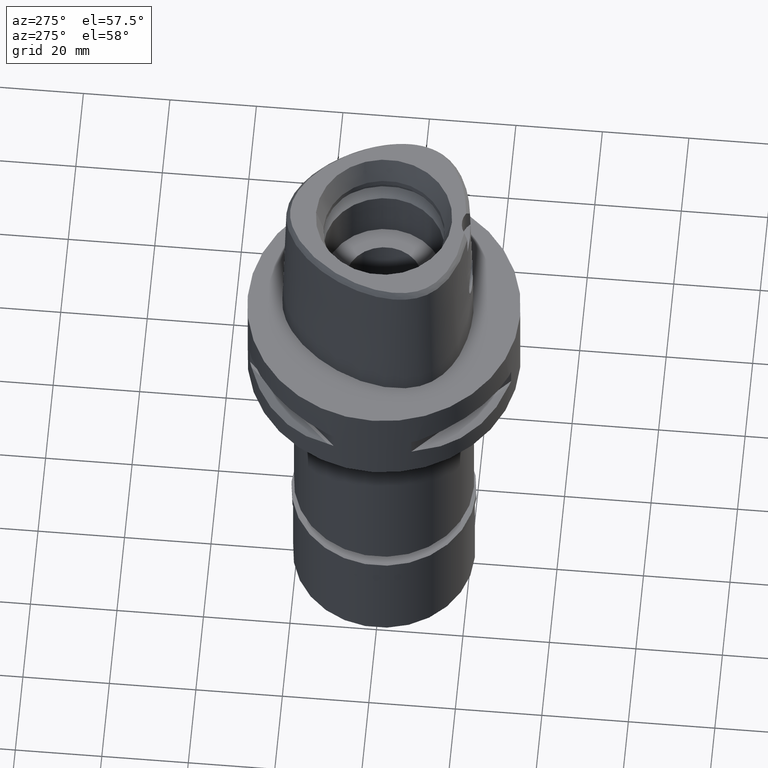
[diagram: clean part render]
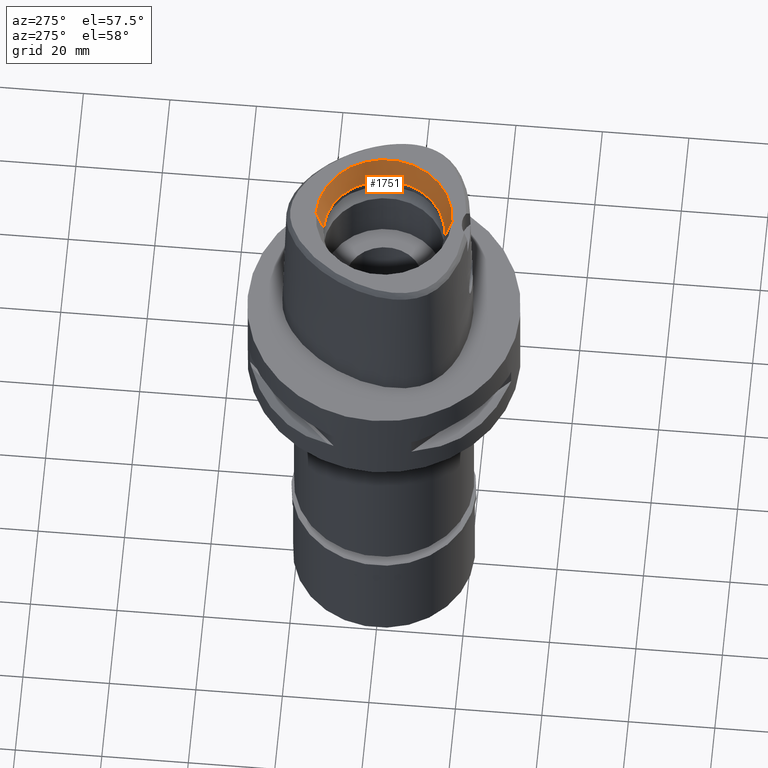
[diagram: same view with one face highlighted and labeled with its STEP entity id]
A machine part, auxiliary view. The second image highlights one B-rep face of the part: STEP entity #1751.
In plain terms, the highlighted conical surface has half-angle 15 deg.
Its self-contained STEP definition (entity closure, byte-faithful):
#6 = DIRECTION ( 'NONE',  ( 0.0000000000000000000, -1.000000000000000000, 0.0000000000000000000 ) ) ;
#212 = LINE ( 'NONE', #1741, #1684 ) ;
#381 = CARTESIAN_POINT ( 'NONE',  ( 0.0000000000000000000, -14.00000000000000000, 31.60000000000000142 ) ) ;
#456 = ORIENTED_EDGE ( 'NONE', *, *, #2686, .T. ) ;
#486 = AXIS2_PLACEMENT_3D ( 'NONE', #3846, #3016, #6 ) ;
#499 = DIRECTION ( 'NONE',  ( 0.0000000000000000000, -0.2588190451025869088, 0.9659258262890505486 ) ) ;
#1100 = VERTEX_POINT ( 'NONE', #1412 ) ;
#1366 = DIRECTION ( 'NONE',  ( 0.0000000000000000000, 0.2588190451025869088, 0.9659258262890505486 ) ) ;
#1412 = CARTESIAN_POINT ( 'NONE',  ( 0.0000000000000000000, -14.00000000000000000, 31.60000000000000142 ) ) ;
#1535 = CONICAL_SURFACE ( 'NONE', #3221, 14.85743741577999977, 0.2617993877991000029 ) ;
#1684 = VECTOR ( 'NONE', #1366, 1000.000000000000000 ) ;
#1741 = CARTESIAN_POINT ( 'NONE',  ( 0.0000000000000000000, 14.00000000000000000, 31.60000000000000142 ) ) ;
#1751 = ADVANCED_FACE ( 'NONE', ( #4516 ), #1535, .F. ) ;
#1859 = ORIENTED_EDGE ( 'NONE', *, *, #4257, .F. ) ;
#2225 = DIRECTION ( 'NONE',  ( 0.0000000000000000000, 1.000000000000000000, 0.0000000000000000000 ) ) ;
#2321 = LINE ( 'NONE', #381, #4561 ) ;
#2456 = ORIENTED_EDGE ( 'NONE', *, *, #2978, .F. ) ;
#2623 = CARTESIAN_POINT ( 'NONE',  ( 0.0000000000000000000, 0.0000000000000000000, 34.79999999999999716 ) ) ;
#2674 = CARTESIAN_POINT ( 'NONE',  ( 0.0000000000000000000, 14.00000000000000000, 31.60000000000000142 ) ) ;
#2686 = EDGE_CURVE ( 'NONE', #3938, #3561, #4422, .T. ) ;
#2978 = EDGE_CURVE ( 'NONE', #1100, #3526, #4024, .T. ) ;
#3009 = DIRECTION ( 'NONE',  ( 0.0000000000000000000, 0.0000000000000000000, 1.000000000000000000 ) ) ;
#3016 = DIRECTION ( 'NONE',  ( 0.0000000000000000000, 0.0000000000000000000, 1.000000000000000000 ) ) ;
#3108 = CARTESIAN_POINT ( 'NONE',  ( 0.0000000000000000000, -15.71487483155999776, 38.00000000000000000 ) ) ;
#3221 = AXIS2_PLACEMENT_3D ( 'NONE', #2623, #3009, #2225 ) ;
#3497 = CARTESIAN_POINT ( 'NONE',  ( 0.0000000000000000000, 0.0000000000000000000, 31.60000000000000142 ) ) ;
#3525 = DIRECTION ( 'NONE',  ( 0.0000000000000000000, 0.0000000000000000000, 1.000000000000000000 ) ) ;
#3526 = VERTEX_POINT ( 'NONE', #2674 ) ;
#3561 = VERTEX_POINT ( 'NONE', #4557 ) ;
#3575 = EDGE_CURVE ( 'NONE', #1100, #3938, #2321, .T. ) ;
#3799 = ORIENTED_EDGE ( 'NONE', *, *, #3575, .T. ) ;
#3846 = CARTESIAN_POINT ( 'NONE',  ( 0.0000000000000000000, 0.0000000000000000000, 38.00000000000000000 ) ) ;
#3938 = VERTEX_POINT ( 'NONE', #3108 ) ;
#4024 = CIRCLE ( 'NONE', #4105, 14.00000000000000000 ) ;
#4105 = AXIS2_PLACEMENT_3D ( 'NONE', #3497, #3525, #4371 ) ;
#4257 = EDGE_CURVE ( 'NONE', #3526, #3561, #212, .T. ) ;
#4371 = DIRECTION ( 'NONE',  ( 0.0000000000000000000, -1.000000000000000000, 0.0000000000000000000 ) ) ;
#4422 = CIRCLE ( 'NONE', #486, 15.71487483155999776 ) ;
#4516 = FACE_OUTER_BOUND ( 'NONE', #4925, .T. ) ;
#4557 = CARTESIAN_POINT ( 'NONE',  ( 0.0000000000000000000, 15.71487483155999776, 38.00000000000000000 ) ) ;
#4561 = VECTOR ( 'NONE', #499, 1000.000000000000000 ) ;
#4925 = EDGE_LOOP ( 'NONE', ( #1859, #2456, #3799, #456 ) ) ;